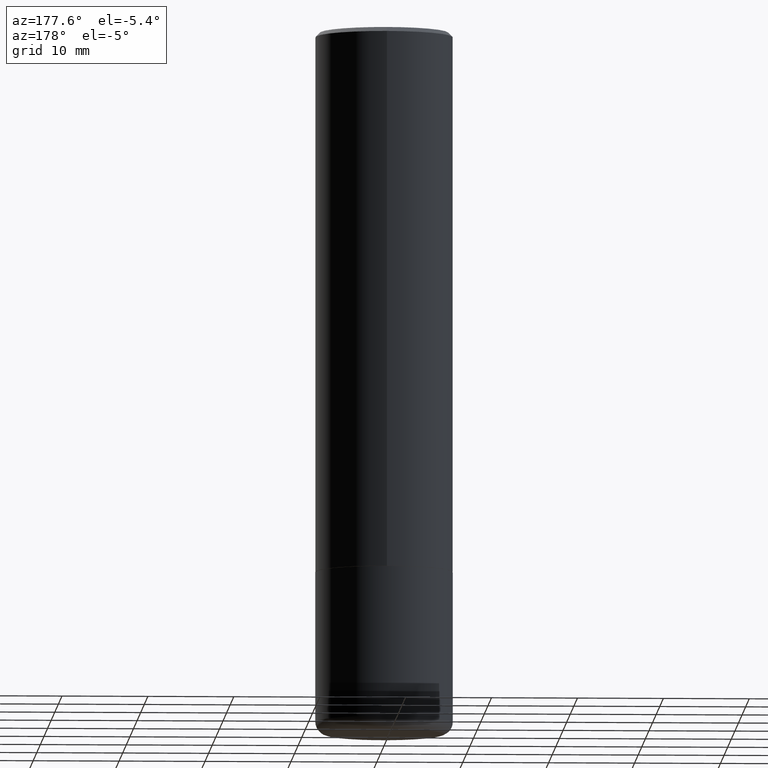
[diagram: clean part render]
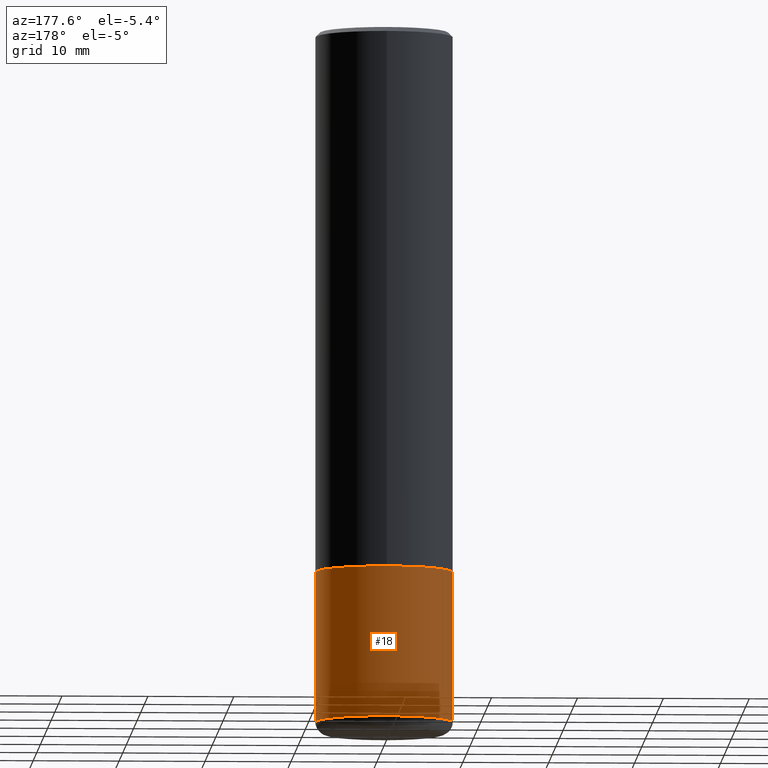
[diagram: same view with one face highlighted and labeled with its STEP entity id]
A machine part, auxiliary view. The second image highlights one B-rep face of the part: STEP entity #18.
In plain terms, the highlighted cylindrical surface (partial cylindrical patch) has radius 7.9997 mm, axis along (-0, 0, 1).
Its self-contained STEP definition (entity closure, byte-faithful):
#14 = CARTESIAN_POINT ( 'NONE',  ( 6.065496279980994755E-29, -8.659921164732655335E-15, -2.480300000000000171 ) ) ;
#18 = ADVANCED_FACE ( 'NONE', ( #103 ), #36, .T. ) ;
#24 = EDGE_CURVE ( 'NONE', #244, #350, #211, .T. ) ;
#36 = CYLINDRICAL_SURFACE ( 'NONE', #82, 0.3149500000000000077 ) ;
#47 = CARTESIAN_POINT ( 'NONE',  ( 0.3149499999999999522, -1.326448675439898354E-14, -3.169199999999999573 ) ) ;
#68 = EDGE_CURVE ( 'NONE', #350, #404, #70, .T. ) ;
#70 = LINE ( 'NONE', #355, #360 ) ;
#71 = DIRECTION ( 'NONE',  ( -2.445468806185136597E-29, 3.491481338843145583E-15, 1.000000000000000000 ) ) ;
#77 = DIRECTION ( 'NONE',  ( 1.000000000000000000, -6.982962677686269866E-15, 0.000000000000000000 ) ) ;
#82 = AXIS2_PLACEMENT_3D ( 'NONE', #134, #262, #201 ) ;
#85 = ORIENTED_EDGE ( 'NONE', *, *, #375, .F. ) ;
#103 = FACE_OUTER_BOUND ( 'NONE', #349, .T. ) ;
#111 = CIRCLE ( 'NONE', #194, 0.3149500000000000077 ) ;
#114 = CARTESIAN_POINT ( 'NONE',  ( 0.3149500000000000077, -1.085920526006994521E-14, -2.480300000000000171 ) ) ;
#118 = ORIENTED_EDGE ( 'NONE', *, *, #68, .T. ) ;
#127 = CARTESIAN_POINT ( 'NONE',  ( 0.3149500000000000077, -2.199284095337289871E-15, 1.535751875536930130E-29 ) ) ;
#131 = CARTESIAN_POINT ( 'NONE',  ( 7.750179740561933543E-29, -1.106520265906169525E-14, -3.169199999999999573 ) ) ;
#134 = CARTESIAN_POINT ( 'NONE',  ( 0.000000000000000000, 0.000000000000000000, 0.000000000000000000 ) ) ;
#138 = AXIS2_PLACEMENT_3D ( 'NONE', #131, #71, #259 ) ;
#150 = DIRECTION ( 'NONE',  ( -2.445468806185136877E-29, 3.491481338843145188E-15, 1.000000000000000000 ) ) ;
#156 = CARTESIAN_POINT ( 'NONE',  ( -0.3149499999999999522, -8.827348312785260842E-15, -3.169199999999999573 ) ) ;
#176 = DIRECTION ( 'NONE',  ( -2.445468806185136597E-29, 3.491481338843145583E-15, 1.000000000000000000 ) ) ;
#193 = VERTEX_POINT ( 'NONE', #114 ) ;
#194 = AXIS2_PLACEMENT_3D ( 'NONE', #14, #176, #77 ) ;
#200 = VECTOR ( 'NONE', #150, 39.37007874015748143 ) ;
#201 = DIRECTION ( 'NONE',  ( 1.000000000000000000, -6.982962677686266711E-15, 4.876176775795936353E-29 ) ) ;
#211 = CIRCLE ( 'NONE', #138, 0.3149499999999999522 ) ;
#231 = DIRECTION ( 'NONE',  ( -2.445468806185136877E-29, 3.491481338843145188E-15, 1.000000000000000000 ) ) ;
#244 = VERTEX_POINT ( 'NONE', #47 ) ;
#250 = EDGE_CURVE ( 'NONE', #193, #404, #111, .T. ) ;
#259 = DIRECTION ( 'NONE',  ( 1.000000000000000000, -6.982962677686264344E-15, 0.000000000000000000 ) ) ;
#262 = DIRECTION ( 'NONE',  ( -2.445468806185136597E-29, 3.491481338843145583E-15, 1.000000000000000000 ) ) ;
#281 = LINE ( 'NONE', #127, #200 ) ;
#349 = EDGE_LOOP ( 'NONE', ( #408, #118, #380, #85 ) ) ;
#350 = VERTEX_POINT ( 'NONE', #156 ) ;
#355 = CARTESIAN_POINT ( 'NONE',  ( -0.3149500000000000077, 2.237854346276435590E-15, -1.549218606675782676E-29 ) ) ;
#360 = VECTOR ( 'NONE', #231, 39.37007874015748143 ) ;
#375 = EDGE_CURVE ( 'NONE', #244, #193, #281, .T. ) ;
#380 = ORIENTED_EDGE ( 'NONE', *, *, #250, .F. ) ;
#404 = VERTEX_POINT ( 'NONE', #411 ) ;
#408 = ORIENTED_EDGE ( 'NONE', *, *, #24, .T. ) ;
#411 = CARTESIAN_POINT ( 'NONE',  ( -0.3149500000000000077, -7.624707565620739308E-15, -2.480300000000000171 ) ) ;